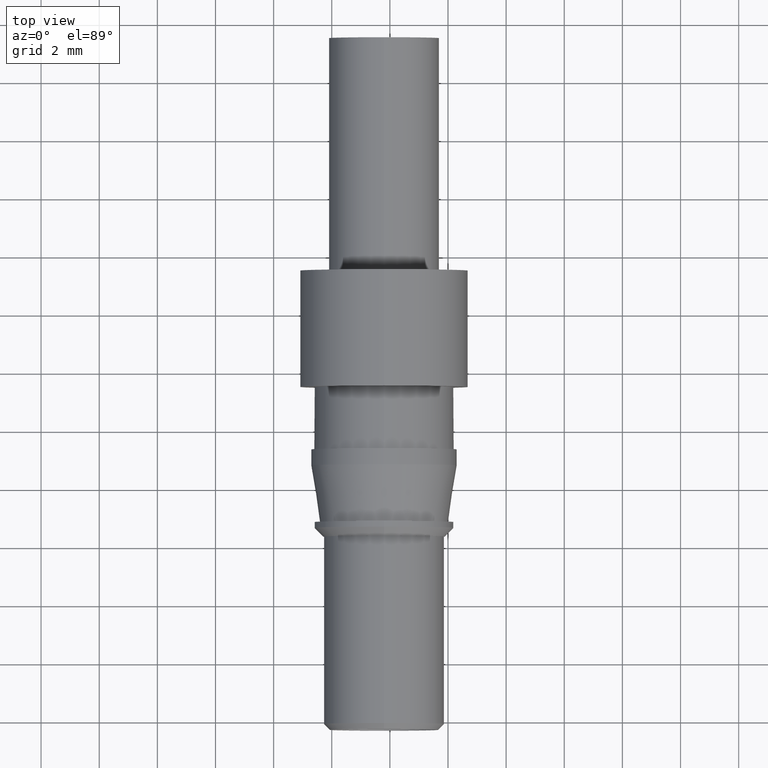
[diagram: clean part render]
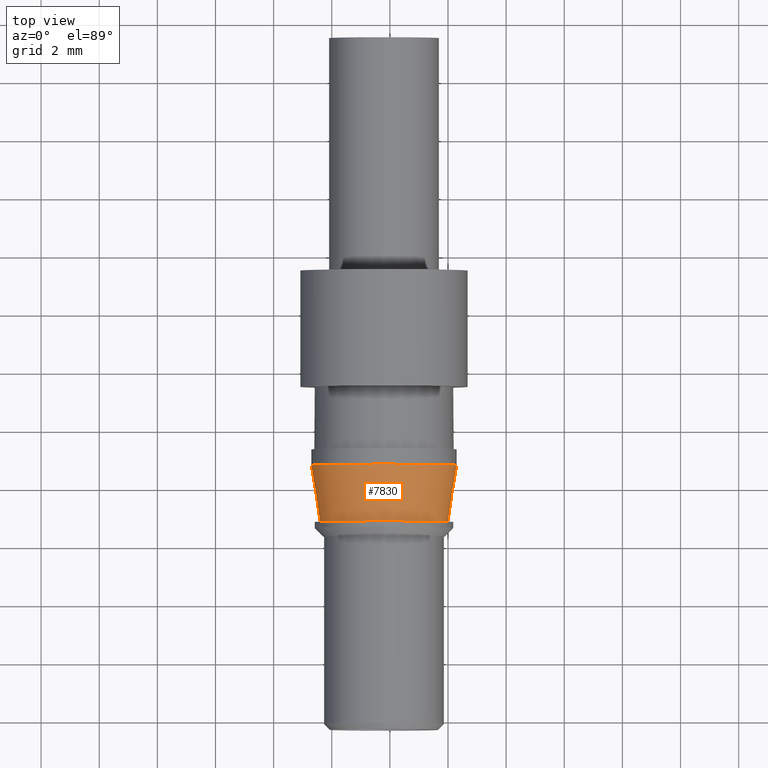
[diagram: same view with one face highlighted and labeled with its STEP entity id]
A machine part, top view. The second image highlights one B-rep face of the part: STEP entity #7830.
In plain terms, the highlighted conical surface has half-angle 8.746 deg.
Its self-contained STEP definition (entity closure, byte-faithful):
#3340=CARTESIAN_POINT('',(67.4468230000002,75.1167733001994,
-11.3999999999995));
#3350=DIRECTION('',(1.,0.,0.));
#3360=DIRECTION('',(0.,-1.,0.));
#3370=AXIS2_PLACEMENT_3D('',#3340,#3350,#3360);
#3380=PLANE('',#3370);
#3610=CARTESIAN_POINT('',(67.4468230000002,75.0109711435309,
-11.9499999999995));
#3620=VERTEX_POINT('',#3610);
#3650=CARTESIAN_POINT('',(66.6468230000002,77.3795149999963,
-11.9499999999995));
#3660=DIRECTION('',(0.,0.,1.));
#3670=DIRECTION('',(0.,1.,0.));
#3680=AXIS2_PLACEMENT_3D('',#3650,#3660,#3670);
#3690=CONICAL_SURFACE('',#3680,2.5,0.152649328395269);
#3700=CARTESIAN_POINT('',(67.4468230000002,75.3301248468044,
-13.8999999999995));
#3710=CARTESIAN_POINT('',(67.4468230000002,75.3032939086194,
-13.7375382302894));
#3720=CARTESIAN_POINT('',(67.4468230000002,75.2765306829493,
-13.5750651959543));
#3730=CARTESIAN_POINT('',(67.4468230000002,75.249827836323,
-13.4125822643499));
#3740=CARTESIAN_POINT('',(67.4468230000002,75.2231249897751,
-13.2500993332219));
#3750=CARTESIAN_POINT('',(67.4468229999958,75.1964825360749,
-13.0876065019471));
#3760=CARTESIAN_POINT('',(67.4468229999958,75.1698941970121,
-12.9251049782478));
#3770=CARTESIAN_POINT('',(67.4468229999958,75.1433058580069,
-12.7626034549006));
#3780=CARTESIAN_POINT('',(67.4468229999999,75.1167716445621,
-12.6000932370801));
#3790=CARTESIAN_POINT('',(67.4468229999999,75.0902861474571,
-12.4375754011268));
#3800=CARTESIAN_POINT('',(67.4468229999999,75.063800650379,
-12.2750575653379));
#3810=CARTESIAN_POINT('',(67.4468230000002,75.0373638784052,
-12.1125321101083));
#3820=CARTESIAN_POINT('',(67.4468230000002,75.0109711435309,
-11.9499999999995));
#3830=B_SPLINE_CURVE_WITH_KNOTS('',3,(#3700,#3710,#3720,#3730,#3740,
#3750,#3760,#3770,#3780,#3790,#3800,#3810,#3820),.UNSPECIFIED.,.F.,.F.,(
4,3,3,3,4),(0.,0.493987521654337,0.987974871094755,1.48196124586762,
1.97594570755846),.UNSPECIFIED.);
#3840=SURFACE_CURVE('',#3830,(#3690,#3380),.CURVE_3D.);
#3850=CARTESIAN_POINT('',(67.4468230000002,75.3301248468044,
-13.8999999999995));
#3860=VERTEX_POINT('',#3850);
#3870=EDGE_CURVE('',#3860,#3620,#3840,.T.);
#7270=CARTESIAN_POINT('',(65.8468230000002,75.0109711435309,
-11.9499999999995));
#7280=VERTEX_POINT('',#7270);
#7310=CARTESIAN_POINT('',(66.6468230000002,77.3795149999963,
-11.9499999999995));
#7320=DIRECTION('',(0.,0.,1.));
#7330=DIRECTION('',(0.,1.,0.));
#7340=AXIS2_PLACEMENT_3D('',#7310,#7320,#7330);
#7350=CIRCLE('',#7340,2.5);
#7360=EDGE_CURVE('',#3620,#7280,#7350,.T.);
#7480=ORIENTED_EDGE('',*,*,#3870,.F.);
#7490=ORIENTED_EDGE('',*,*,#7360,.F.);
#7500=CARTESIAN_POINT('',(65.8468230000002,73.3927535241202,
-11.3999999999995));
#7510=DIRECTION('',(-1.,0.,0.));
#7520=DIRECTION('',(0.,1.,0.));
#7530=AXIS2_PLACEMENT_3D('',#7500,#7510,#7520);
#7540=PLANE('',#7530);
#7550=CARTESIAN_POINT('',(65.8468230000002,75.0109711435309,
-11.9499999999995));
#7560=CARTESIAN_POINT('',(65.8468230000002,75.0373638784052,
-12.1125321101083));
#7570=CARTESIAN_POINT('',(65.8468230000005,75.063800650379,
-12.2750575653379));
#7580=CARTESIAN_POINT('',(65.8468230000005,75.0902861474571,
-12.4375754011268));
#7590=CARTESIAN_POINT('',(65.8468230000005,75.1167716445621,
-12.6000932370801));
#7600=CARTESIAN_POINT('',(65.8468230000046,75.1433058580069,
-12.7626034549006));
#7610=CARTESIAN_POINT('',(65.8468230000046,75.1698941970121,
-12.9251049782478));
#7620=CARTESIAN_POINT('',(65.8468230000046,75.1964825360749,
-13.0876065019471));
#7630=CARTESIAN_POINT('',(65.8468230000002,75.2231249897751,
-13.2500993332219));
#7640=CARTESIAN_POINT('',(65.8468230000002,75.249827836323,
-13.4125822643499));
#7650=CARTESIAN_POINT('',(65.8468230000002,75.2765306829478,
-13.5750651959453));
#7660=CARTESIAN_POINT('',(65.8468230000002,75.3032939086203,
-13.7375382302946));
#7670=CARTESIAN_POINT('',(65.8468230000002,75.3301248468044,
-13.8999999999995));
#7680=B_SPLINE_CURVE_WITH_KNOTS('',3,(#7550,#7560,#7570,#7580,#7590,
#7600,#7610,#7620,#7630,#7640,#7650,#7660,#7670),.UNSPECIFIED.,.F.,.F.,(
4,3,3,3,4),(0.,0.493984461353187,0.987970836126068,1.48195818556614,
1.97594570730901),.UNSPECIFIED.);
#7690=SURFACE_CURVE('',#7680,(#3690,#7540),.CURVE_3D.);
#7700=CARTESIAN_POINT('',(65.8468230000002,75.3301248468044,
-13.8999999999995));
#7710=VERTEX_POINT('',#7700);
#7720=EDGE_CURVE('',#7280,#7710,#7690,.T.);
#7730=ORIENTED_EDGE('',*,*,#7720,.F.);
#7740=CARTESIAN_POINT('',(66.6468230000002,77.3795149999963,
-13.8999999999995));
#7750=DIRECTION('',(0.,0.,1.));
#7760=DIRECTION('',(0.,1.,0.));
#7770=AXIS2_PLACEMENT_3D('',#7740,#7750,#7760);
#7780=CIRCLE('',#7770,2.19999999999999);
#7790=EDGE_CURVE('',#3860,#7710,#7780,.T.);
#7800=ORIENTED_EDGE('',*,*,#7790,.T.);
#7810=EDGE_LOOP('',(#7800,#7730,#7490,#7480));
#7820=FACE_OUTER_BOUND('',#7810,.T.);
#7830=ADVANCED_FACE('',(#7820),#3690,.T.);